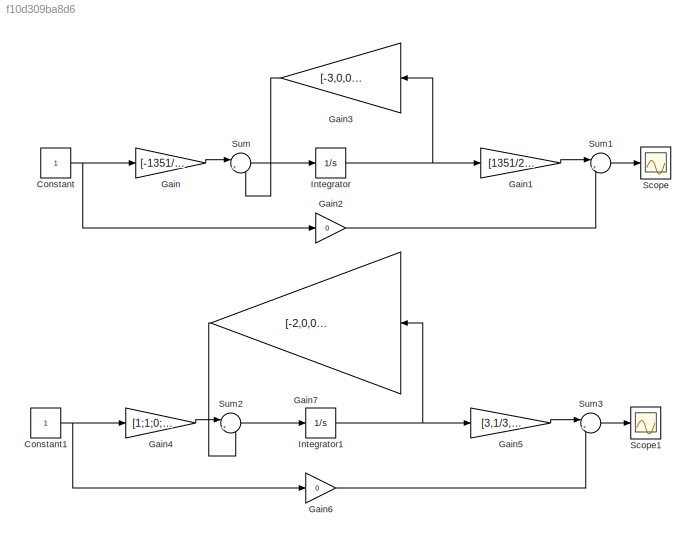
MODEL slx_f10d309ba8d6
KIND model
CONFIG AbsTol = auto
CONFIG EnableMultiTasking = off
CONFIG FixedStep = auto
CONFIG MaxStep = auto
CONFIG MinStep = auto
CONFIG RelTol = 1e-3
CONFIG SampleTimeConstraint = Unconstrained
CONFIG SolverName = VariableStepAuto
CONFIG StartTime = 0.0
CONFIG StopTime = 10.0
BLOCK [Constant] Constant
BLOCK [Constant] Constant1
BLOCK [Gain] Gain
  Gain = [-1351/1170;1351/780;-780/1351]
  Multiplication = Matrix(K*u)
BLOCK [Gain] Gain1
  Gain = [1351/234,1351/234,1351/234]
  Multiplication = Matrix(K*u)
BLOCK [Gain] Gain2
  Gain = 0
BLOCK [Gain] Gain3
  Gain = [-3,0,0;0,-1,0;0,0,0]
  Multiplication = Matrix(K*u)
  NameLocation = top
BLOCK [Gain] Gain4
  Gain = [1;1;0;1]
  Multiplication = Matrix(K*u)
BLOCK [Gain] Gain5
  Gain = [3,1/3,-4,-10/3]
  Multiplication = Matrix(K*u)
BLOCK [Gain] Gain6
  Gain = 0
BLOCK [Gain] Gain7
  Gain = [-2,0,0,0;0,0,0,0;0,0,-3,1;0,0,0,-3]
  Multiplication = Matrix(K*u)
  NameLocation = top
BLOCK [Integrator] Integrator
  Ports = [1, 1]
BLOCK [Integrator] Integrator1
  Ports = [1, 1]
BLOCK [Scope] Scope
  Floating = off
  NumInputPorts = 1
  Ports = [1]
  ScopeSpecificationString = Simulink.scopes.TimeScopeBlockCfg('CurrentConfiguration', extmgr.ConfigurationSet(extmgr.Configuration('Core','General UI',true),extmgr.Configuration('Core','Source UI',true),extmgr.Configuration('Sources','WiredSimulink',true),extmgr.Configuration('Visuals','Time Domain',true,'SerializedDisplays',{struct('MinYLimReal','-28.85877','MaxYLimReal','4.16884','YLabelReal','','MinYLimMag','0.00000','Max...<+1361ch>
BLOCK [Scope] Scope1
  Floating = off
  NumInputPorts = 1
  Ports = [1]
  ScopeSpecificationString = Simulink.scopes.TimeScopeBlockCfg('CurrentConfiguration', extmgr.ConfigurationSet(extmgr.Configuration('Core','General UI',true),extmgr.Configuration('Core','Source UI',true),extmgr.Configuration('Sources','WiredSimulink',true,'DataLoggingVariableName','ScopeData1'),extmgr.Configuration('Visuals','Time Domain',true,'SerializedDisplays',{struct('MinYLimReal','-0.40972','MaxYLimReal','3.6875','YLabe...<+1416ch>
BLOCK [Sum] Sum
  Inputs = |++
  Ports = [2, 1]
BLOCK [Sum] Sum1
  Inputs = |++
  Ports = [2, 1]
BLOCK [Sum] Sum2
  Inputs = |++
  Ports = [2, 1]
BLOCK [Sum] Sum3
  Inputs = |++
  Ports = [2, 1]
NET Constant1:1 -> Gain4:1, Gain6:1
NET Constant:1 -> Gain2:1, Gain:1
LINE Gain1:1 -> Sum1:1
LINE Gain2:1 -> Sum1:2
LINE Gain3:1 -> Sum:2
LINE Gain4:1 -> Sum2:1
LINE Gain5:1 -> Sum3:1
LINE Gain6:1 -> Sum3:2
LINE Gain7:1 -> Sum2:2
LINE Gain:1 -> Sum:1
NET Integrator1:1 -> Gain5:1, Gain7:1
NET Integrator:1 -> Gain1:1, Gain3:1
LINE Sum1:1 -> Scope:1
LINE Sum2:1 -> Integrator1:1
LINE Sum3:1 -> Scope1:1
LINE Sum:1 -> Integrator:1
note: NET lines group one-source signal fan-out (src -> all destinations, sorted); 1:1 wires keep LINE
